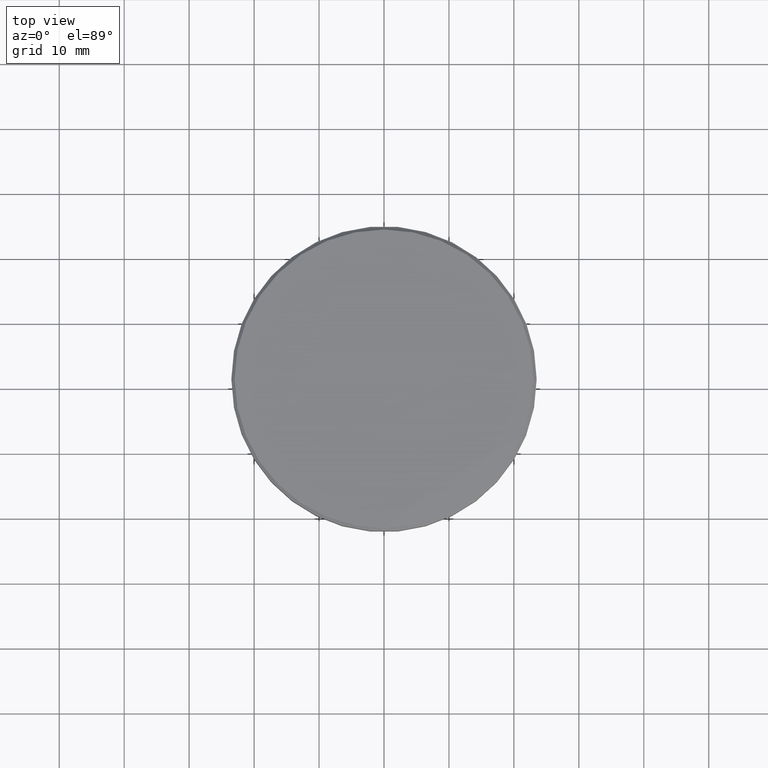
[diagram: clean part render]
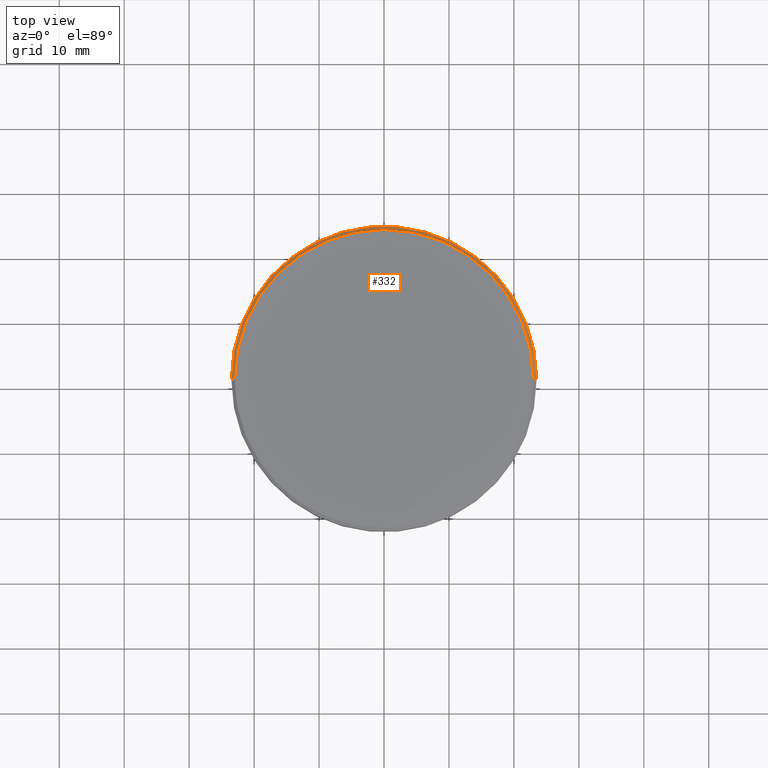
[diagram: same view with one face highlighted and labeled with its STEP entity id]
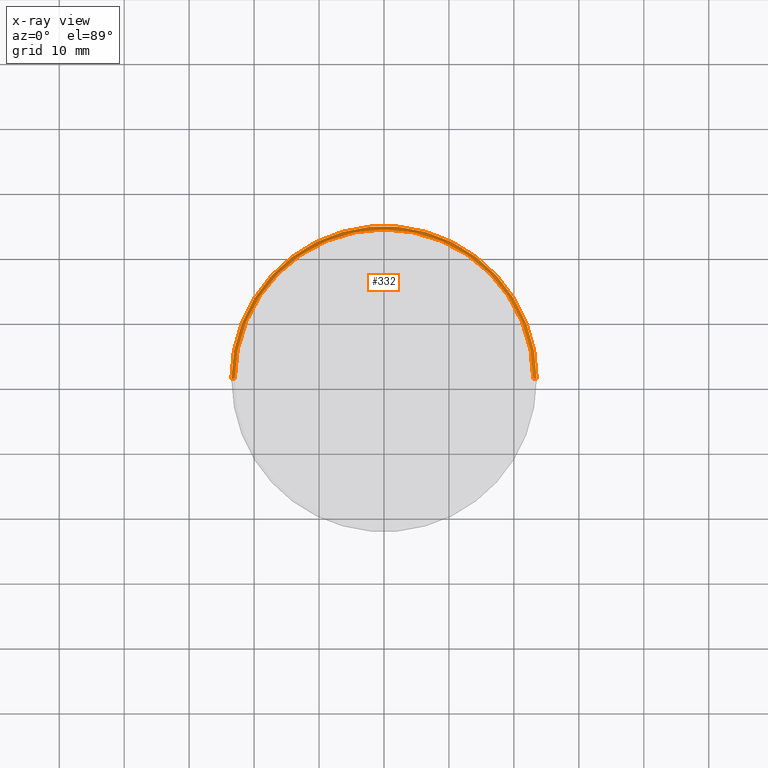
[diagram: x-ray of the same camera — body ghosted, the highlighted face saturated]
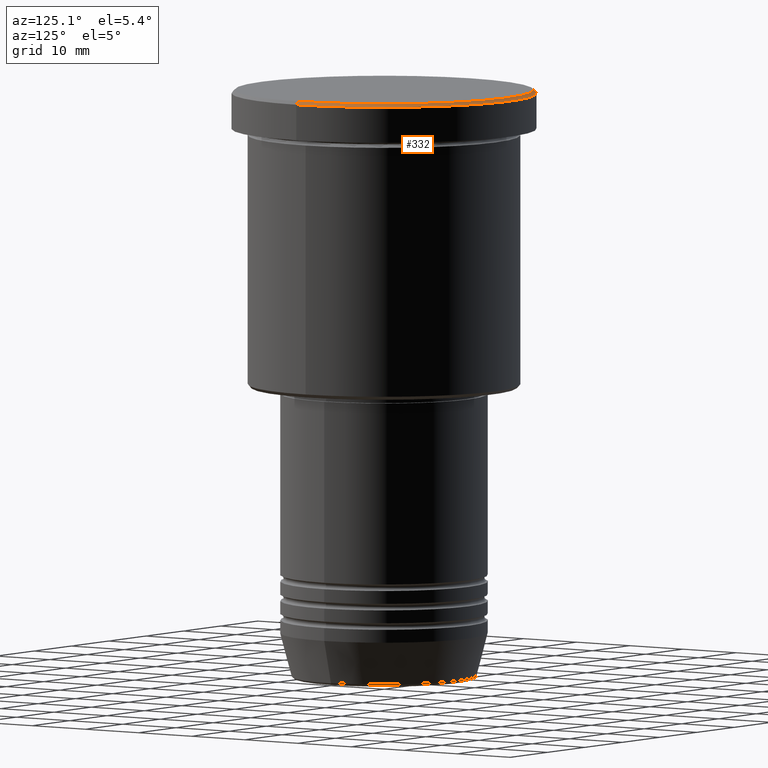
[diagram: same view with one face highlighted and labeled with its STEP entity id]
A machine part, top view. The second image highlights one B-rep face of the part: STEP entity #332.
The next image is the same camera in x-ray: the body ghosted, the highlighted face saturated — about 0% of this face is hidden behind the body in this view.
A second angle (auxiliary view) of the same face is appended — the face is thin or edge-on in the first view.
In plain terms, the highlighted conical surface has half-angle 45 deg.
Its self-contained STEP definition (entity closure, byte-faithful):
#6 = VERTEX_POINT ( 'NONE', #535 ) ;
#14 = DIRECTION ( 'NONE',  ( 1.000000000000000000, 0.000000000000000000, 0.000000000000000000 ) ) ;
#47 = EDGE_CURVE ( 'NONE', #868, #6, #275, .T. ) ;
#58 = EDGE_CURVE ( 'NONE', #321, #1160, #159, .T. ) ;
#93 = ORIENTED_EDGE ( 'NONE', *, *, #783, .F. ) ;
#104 = EDGE_CURVE ( 'NONE', #868, #1160, #948, .T. ) ;
#108 = AXIS2_PLACEMENT_3D ( 'NONE', #673, #562, #1040 ) ;
#118 = FACE_OUTER_BOUND ( 'NONE', #596, .T. ) ;
#130 = CARTESIAN_POINT ( 'NONE',  ( 22.99999999999999645, 2.816687638038911957E-15, 0.000000000000000000 ) ) ;
#159 = CIRCLE ( 'NONE', #858, 23.50000000000000000 ) ;
#195 = CARTESIAN_POINT ( 'NONE',  ( -22.99999999999999645, 0.000000000000000000, 0.000000000000000000 ) ) ;
#263 = ORIENTED_EDGE ( 'NONE', *, *, #58, .F. ) ;
#275 = CIRCLE ( 'NONE', #1119, 22.99999999999999645 ) ;
#281 = DIRECTION ( 'NONE',  ( -0.7071067811865401342, 0.000000000000000000, -0.7071067811865549002 ) ) ;
#310 = CONICAL_SURFACE ( 'NONE', #108, 22.99999999999999645, 0.7853981633974378429 ) ;
#321 = VERTEX_POINT ( 'NONE', #445 ) ;
#332 = ADVANCED_FACE ( 'NONE', ( #118 ), #310, .T. ) ;
#370 = CARTESIAN_POINT ( 'NONE',  ( 0.000000000000000000, 0.000000000000000000, -0.5000000000000143219 ) ) ;
#445 = CARTESIAN_POINT ( 'NONE',  ( -23.50000000000000000, 2.877919977996280320E-15, -0.5000000000000143219 ) ) ;
#464 = CARTESIAN_POINT ( 'NONE',  ( 22.99999999999999645, 2.847303808017596139E-15, 0.000000000000000000 ) ) ;
#486 = VECTOR ( 'NONE', #495, 1000.000000000000000 ) ;
#495 = DIRECTION ( 'NONE',  ( 0.7071067811865401342, 8.659560562354842879E-17, -0.7071067811865549002 ) ) ;
#535 = CARTESIAN_POINT ( 'NONE',  ( -22.99999999999999645, 0.000000000000000000, 0.000000000000000000 ) ) ;
#562 = DIRECTION ( 'NONE',  ( 0.000000000000000000, 0.000000000000000000, -1.000000000000000000 ) ) ;
#596 = EDGE_LOOP ( 'NONE', ( #1057, #1179, #263, #93 ) ) ;
#631 = VECTOR ( 'NONE', #281, 1000.000000000000000 ) ;
#673 = CARTESIAN_POINT ( 'NONE',  ( 0.000000000000000000, 0.000000000000000000, 0.000000000000000000 ) ) ;
#783 = EDGE_CURVE ( 'NONE', #6, #321, #1105, .T. ) ;
#846 = DIRECTION ( 'NONE',  ( 1.000000000000000000, 0.000000000000000000, 0.000000000000000000 ) ) ;
#858 = AXIS2_PLACEMENT_3D ( 'NONE', #370, #924, #846 ) ;
#868 = VERTEX_POINT ( 'NONE', #464 ) ;
#924 = DIRECTION ( 'NONE',  ( 0.000000000000000000, 0.000000000000000000, -1.000000000000000000 ) ) ;
#948 = LINE ( 'NONE', #130, #486 ) ;
#1013 = DIRECTION ( 'NONE',  ( -0.000000000000000000, -0.000000000000000000, 1.000000000000000000 ) ) ;
#1026 = CARTESIAN_POINT ( 'NONE',  ( 0.000000000000000000, 0.000000000000000000, 0.000000000000000000 ) ) ;
#1040 = DIRECTION ( 'NONE',  ( -1.000000000000000000, 0.000000000000000000, 0.000000000000000000 ) ) ;
#1057 = ORIENTED_EDGE ( 'NONE', *, *, #47, .F. ) ;
#1074 = CARTESIAN_POINT ( 'NONE',  ( 23.50000000000000000, 0.000000000000000000, -0.5000000000000143219 ) ) ;
#1105 = LINE ( 'NONE', #195, #631 ) ;
#1119 = AXIS2_PLACEMENT_3D ( 'NONE', #1026, #1013, #14 ) ;
#1160 = VERTEX_POINT ( 'NONE', #1074 ) ;
#1179 = ORIENTED_EDGE ( 'NONE', *, *, #104, .T. ) ;